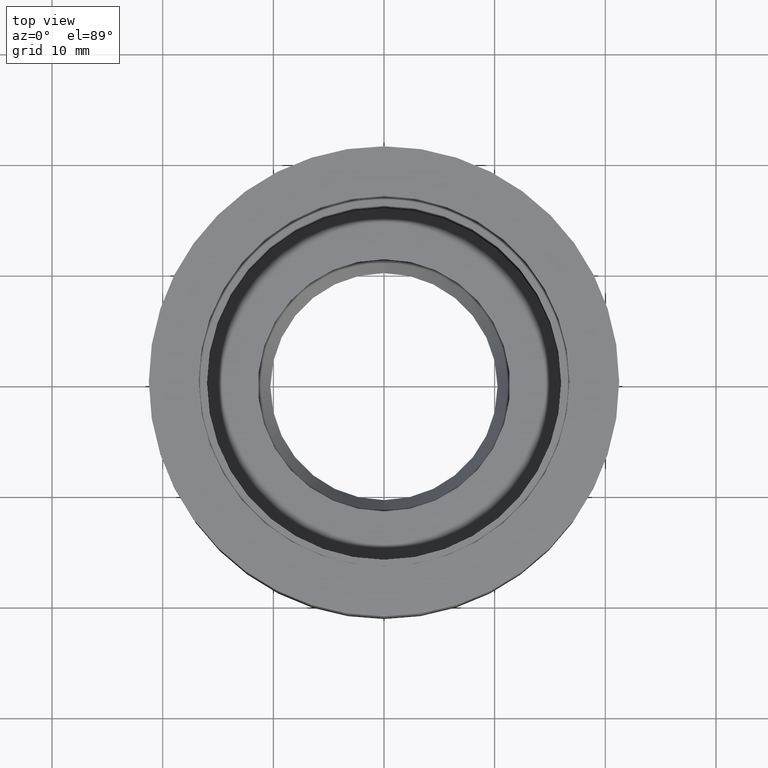
[diagram: clean part render]
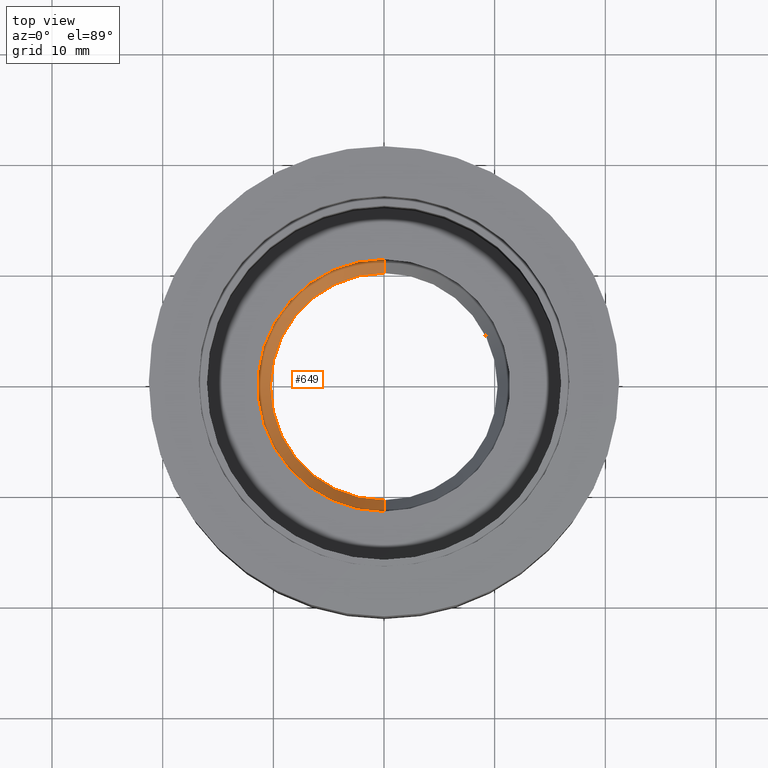
[diagram: same view with one face highlighted and labeled with its STEP entity id]
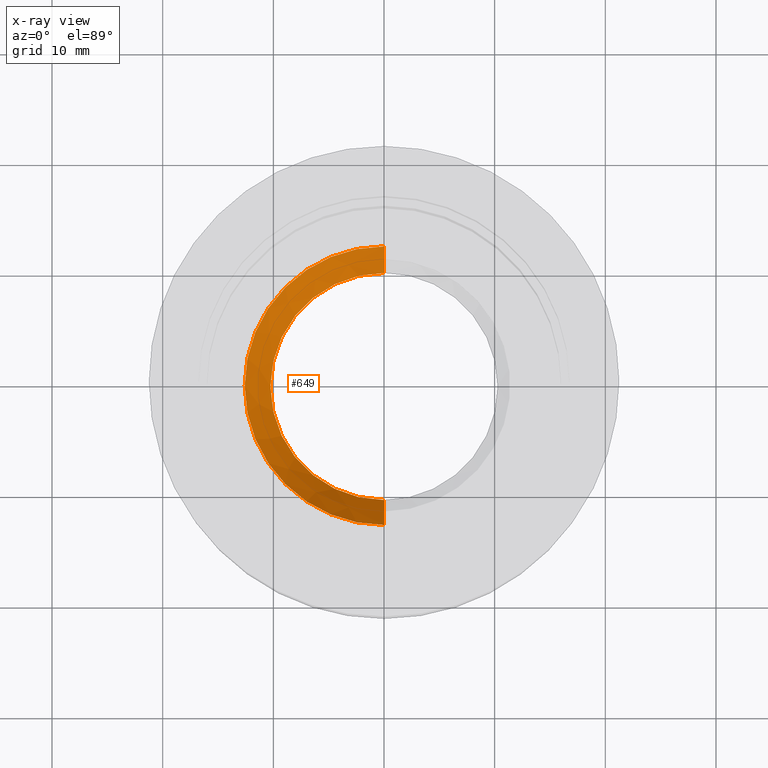
[diagram: x-ray of the same camera — body ghosted, the highlighted face saturated]
A machine part, top view. The second image highlights one B-rep face of the part: STEP entity #649.
The next image is the same camera in x-ray: the body ghosted, the highlighted face saturated — about 0% of this face is hidden behind the body in this view.
In plain terms, the highlighted conical surface has half-angle 30 deg.
Its self-contained STEP definition (entity closure, byte-faithful):
#194=CARTESIAN_POINT('',(0.E0,0.E0,-2.305E1));
#195=DIRECTION('',(0.E0,0.E0,1.E0));
#196=DIRECTION('',(0.E0,1.E0,0.E0));
#197=AXIS2_PLACEMENT_3D('',#194,#195,#196);
#202=DIRECTION('',(0.E0,4.999999999998E-1,8.660254037846E-1));
#203=VECTOR('',#202,4.654597870205E0);
#204=CARTESIAN_POINT('',(0.E0,1.026320106490E1,-2.7081E1));
#205=LINE('',#204,#203);
#217=CARTESIAN_POINT('',(0.E0,0.E0,-2.7081E1));
#218=DIRECTION('',(0.E0,0.E0,1.E0));
#219=DIRECTION('',(0.E0,1.E0,0.E0));
#220=AXIS2_PLACEMENT_3D('',#217,#218,#219);
#225=DIRECTION('',(0.E0,-4.999999999998E-1,8.660254037846E-1));
#226=VECTOR('',#225,4.654597870205E0);
#227=CARTESIAN_POINT('',(0.E0,-1.026320106490E1,-2.7081E1));
#228=LINE('',#227,#226);
#416=CARTESIAN_POINT('',(0.E0,-1.25905E1,-2.305E1));
#417=CARTESIAN_POINT('',(0.E0,1.25905E1,-2.305E1));
#418=VERTEX_POINT('',#416);
#419=VERTEX_POINT('',#417);
#420=CARTESIAN_POINT('',(0.E0,1.026320106490E1,-2.7081E1));
#421=VERTEX_POINT('',#420);
#422=CARTESIAN_POINT('',(0.E0,-1.026320106490E1,-2.7081E1));
#423=VERTEX_POINT('',#422);
#637=CARTESIAN_POINT('',(0.E0,0.E0,-2.50655E1));
#638=DIRECTION('',(0.E0,0.E0,1.E0));
#639=DIRECTION('',(0.E0,1.E0,0.E0));
#640=AXIS2_PLACEMENT_3D('',#637,#638,#639);
#641=CONICAL_SURFACE('',#640,1.142685053245E1,3.E1);
#642=ORIENTED_EDGE('',*,*,#627,.F.);
#644=ORIENTED_EDGE('',*,*,#643,.T.);
#645=ORIENTED_EDGE('',*,*,#630,.T.);
#646=ORIENTED_EDGE('',*,*,#617,.F.);
#647=EDGE_LOOP('',(#642,#644,#645,#646));
#648=FACE_OUTER_BOUND('',#647,.F.);
#198=CIRCLE('',#197,1.25905E1);
#221=CIRCLE('',#220,1.026320106490E1);
#617=EDGE_CURVE('',#419,#418,#198,.T.);
#627=EDGE_CURVE('',#421,#419,#205,.T.);
#630=EDGE_CURVE('',#423,#418,#228,.T.);
#643=EDGE_CURVE('',#421,#423,#221,.T.);
#649=ADVANCED_FACE('',(#648),#641,.F.);